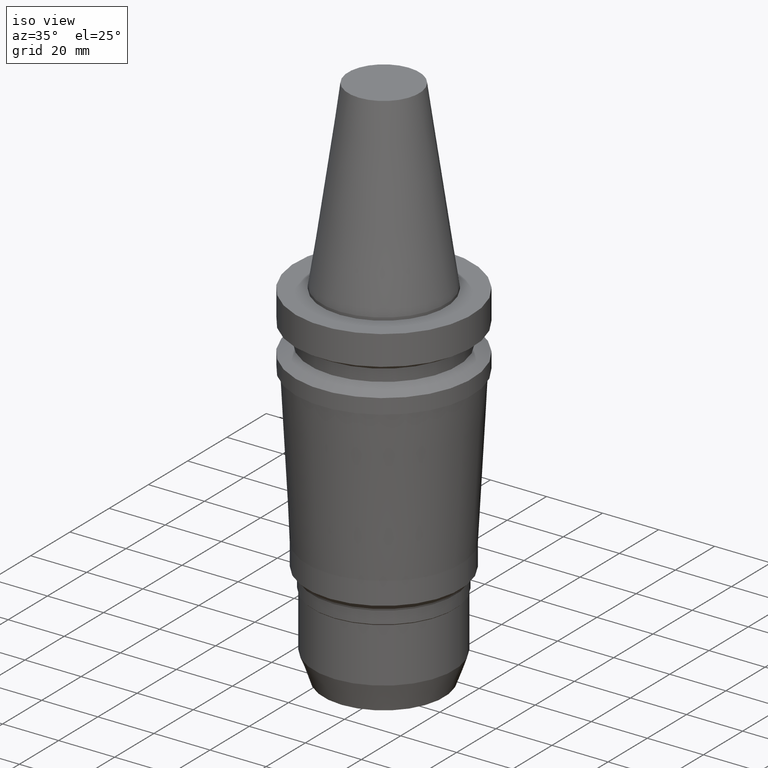
[diagram: clean part render]
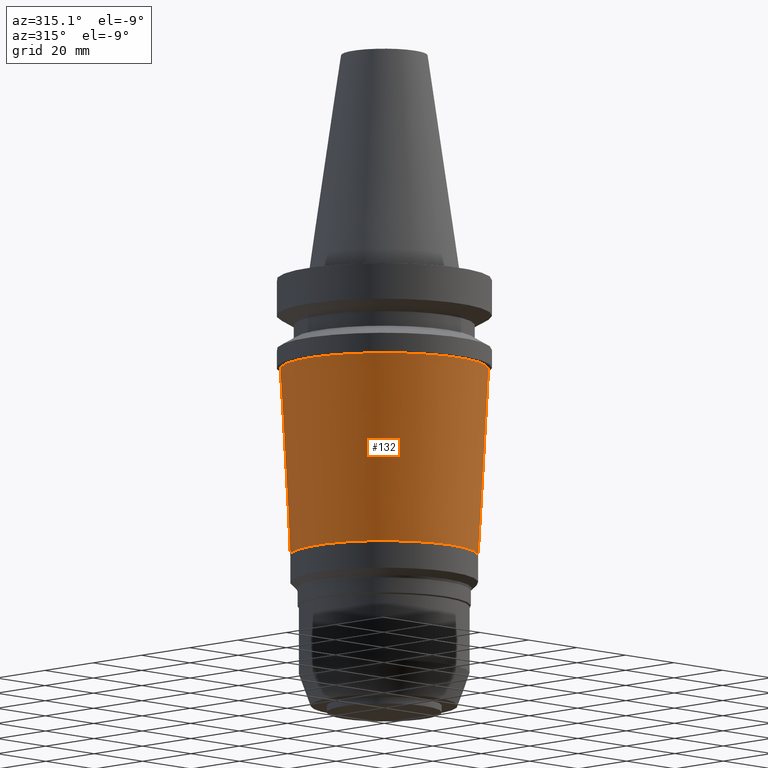
[diagram: tour spotlight — one face highlighted and labeled with its STEP entity id]
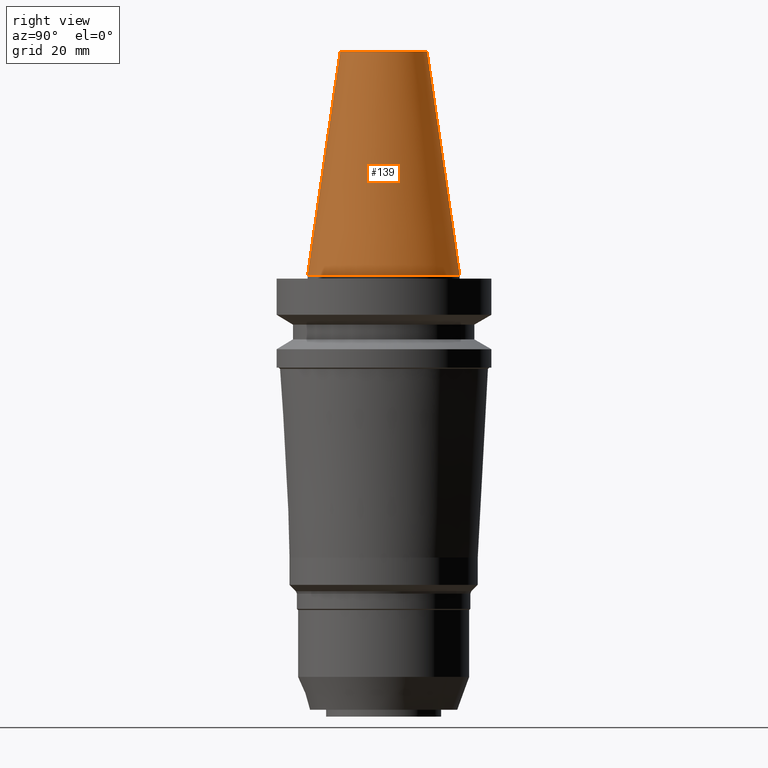
[diagram: tour spotlight — one face highlighted and labeled with its STEP entity id]
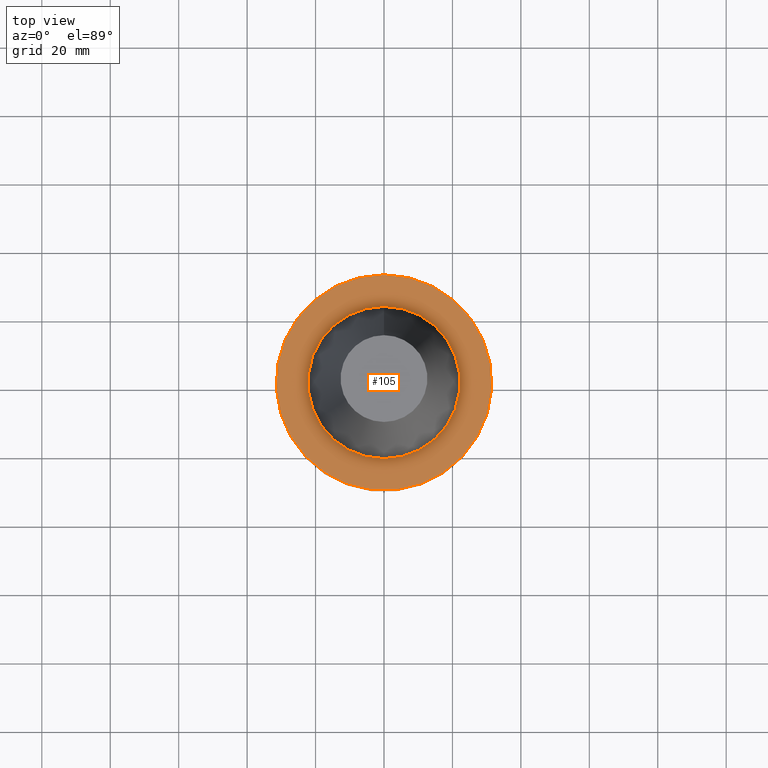
[diagram: tour spotlight — one face highlighted and labeled with its STEP entity id]
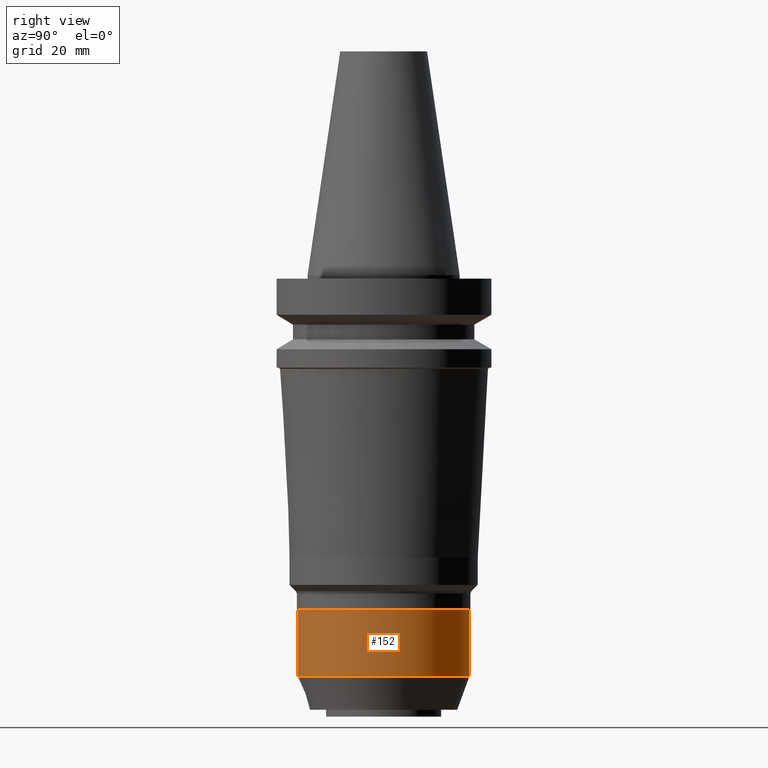
[diagram: tour spotlight — one face highlighted and labeled with its STEP entity id]
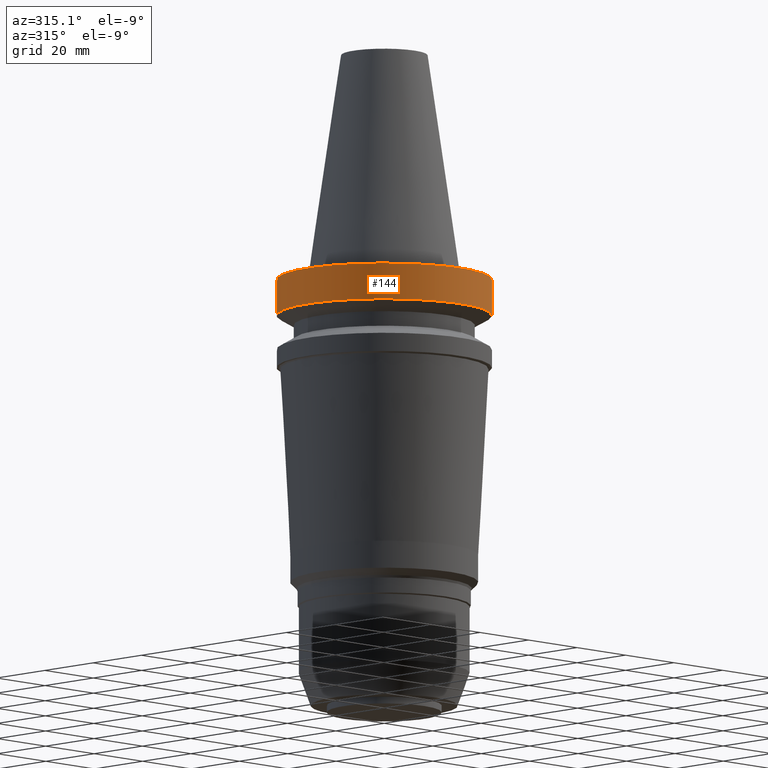
[diagram: tour spotlight — one face highlighted and labeled with its STEP entity id]
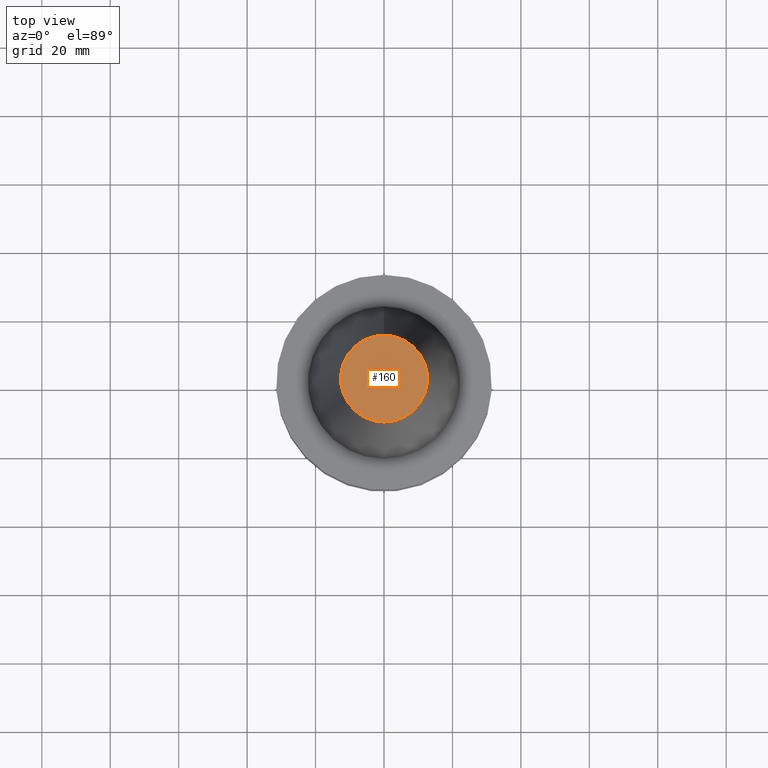
[diagram: tour spotlight — one face highlighted and labeled with its STEP entity id]
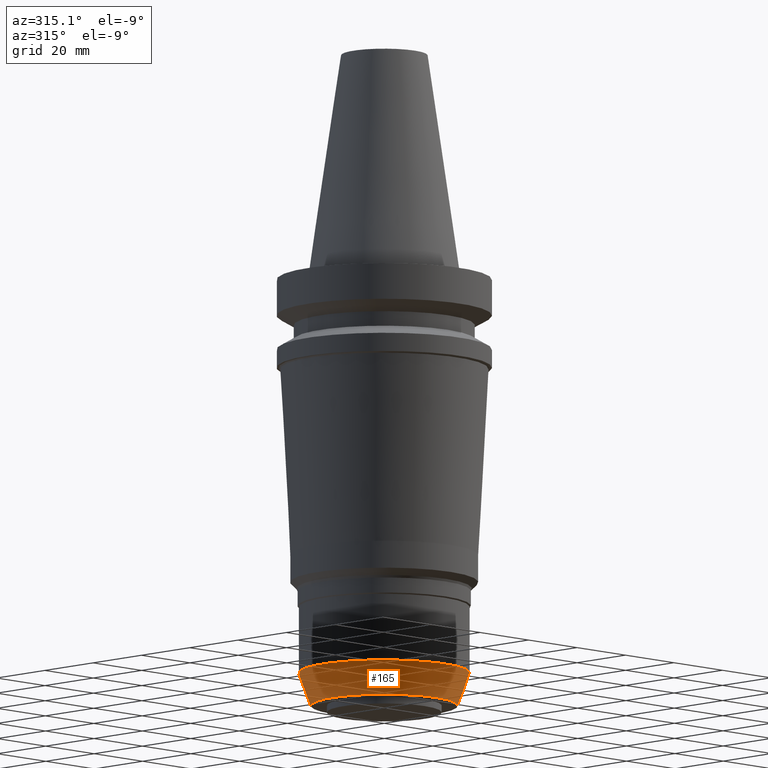
[diagram: tour spotlight — one face highlighted and labeled with its STEP entity id]
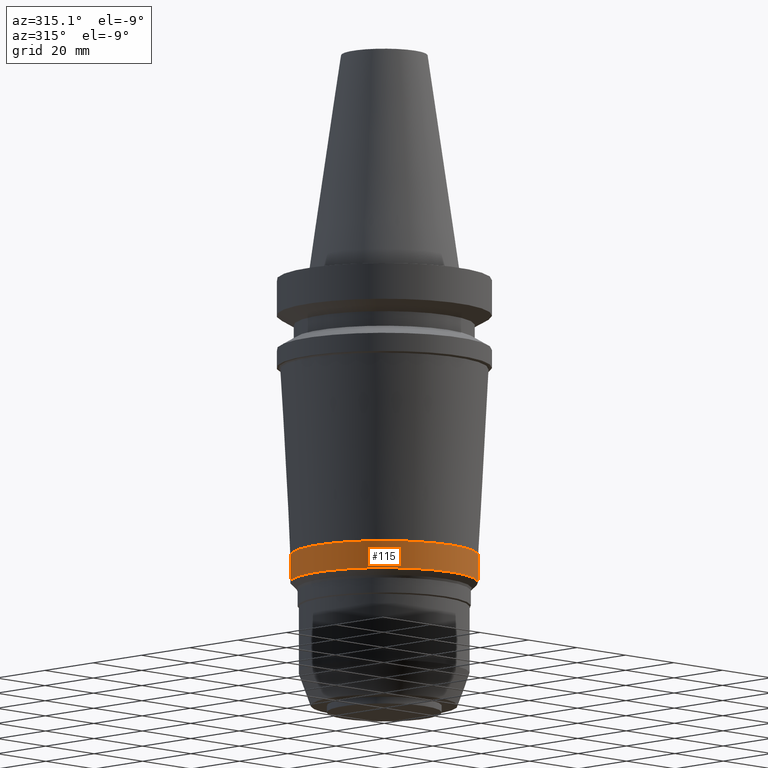
[diagram: tour spotlight — one face highlighted and labeled with its STEP entity id]
A machine part: a face-by-face anatomy tour. The part has 22 B-rep faces; the first image is the clean iso view, then the 8 largest visible faces are spotlighted one at a time (largest first), each with its STEP entity span.

Face 1 — auxiliary view, entity #132. In plain terms, the highlighted conical surface has half-angle 3.094 deg.
Definition (entity closure, byte-faithful):
#92=EDGE_CURVE('Unnamed[1]',#231,#231,#232,.T.);
#107=EDGE_CURVE('Unnamed[1]',#255,#255,#256,.T.);
#132=ADVANCED_FACE('Unnamed[1]',(#294,#295),#296,.T.);
#231=VERTEX_POINT('',#420);
#232=CIRCLE('',#421,30.479545410984);
#255=VERTEX_POINT('',#450);
#256=CIRCLE('',#451,27.5000000000001);
#294=FACE_BOUND('',#499,.T.);
#295=FACE_BOUND('',#500,.T.);
#296=CONICAL_SURFACE('',#501,28.989772705492,0.0540015003759622);
#420=CARTESIAN_POINT('',(1.67644410229264E-015,30.479545410984,-27.3784098967939));
#421=AXIS2_PLACEMENT_3D('',#631,#632,#633);
#450=CARTESIAN_POINT('',(5.05166804648287E-015,27.5000000000001,-82.5000000000006));
#451=AXIS2_PLACEMENT_3D('',#658,#659,#660);
#499=EDGE_LOOP('',(#701));
#500=EDGE_LOOP('',(#702));
#501=AXIS2_PLACEMENT_3D('',#703,#704,#705);
#631=CARTESIAN_POINT('',(1.67644410229264E-015,7.01990976869994E-014,-27.3784098967939));
#632=DIRECTION('',(6.12323399573677E-017,-7.43161200358749E-017,-1.0));
#633=DIRECTION('',(-2.76602804422784E-034,1.0,-7.43161200358749E-017));
#658=CARTESIAN_POINT('',(5.05166804648287E-015,6.61026749803221E-014,-82.5000000000006));
#659=DIRECTION('',(6.12323399573677E-017,-7.43161200359167E-017,-1.0));
#660=DIRECTION('',(-2.76602804412402E-034,1.0,-7.43161200359167E-017));
#701=ORIENTED_EDGE('',*,*,#107,.F.);
#702=ORIENTED_EDGE('',*,*,#92,.T.);
#703=CARTESIAN_POINT('',(3.36405607438776E-015,6.81508863336608E-014,-54.9392049483973));
#704=DIRECTION('',(-6.12323399573677E-017,7.43161200358947E-017,1.0));
#705=DIRECTION('',(-2.76602804405485E-034,1.0,-7.43161200358947E-017));

Face 2 — right view, entity #139. In plain terms, the highlighted conical surface has half-angle 8.297 deg.
Definition (entity closure, byte-faithful):
#90=EDGE_CURVE('Unnamed[1]',#228,#228,#229,.T.);
#117=EDGE_CURVE('Unnamed[1]',#271,#271,#272,.T.);
#139=ADVANCED_FACE('Unnamed[1]',(#305,#306),#307,.T.);
#228=VERTEX_POINT('',#416);
#229=CIRCLE('',#417,22.225);
#271=VERTEX_POINT('',#470);
#272=CIRCLE('',#471,12.6875000000001);
#305=FACE_BOUND('',#513,.T.);
#306=FACE_BOUND('',#514,.T.);
#307=CONICAL_SURFACE('',#515,17.45625,0.144812498238936);
#416=CARTESIAN_POINT('',(1.71319921032766E-029,22.2250000000001,-2.8153873565375E-013));
#417=AXIS2_PLACEMENT_3D('',#628,#629,#630);
#470=CARTESIAN_POINT('',(-4.00459503321185E-015,12.6875000000002,65.4000000000001));
#471=AXIS2_PLACEMENT_3D('',#676,#677,#678);
#513=EDGE_LOOP('',(#713));
#514=EDGE_LOOP('',(#714));
#515=AXIS2_PLACEMENT_3D('',#715,#716,#717);
#628=CARTESIAN_POINT('',(1.74032777401202E-029,7.22337548832805E-014,-2.8421709430404E-013));
#629=DIRECTION('',(6.12323399573677E-017,-7.43161200358123E-017,-1.0));
#630=DIRECTION('',(-2.76602804424832E-034,1.0,-7.43161200358123E-017));
#676=CARTESIAN_POINT('',(-4.00459503321185E-015,7.70940291336257E-014,65.4000000000001));
#677=DIRECTION('',(6.12323399573677E-017,-7.43161200357634E-017,-1.0));
#678=DIRECTION('',(-2.76602804425831E-034,1.0,-7.43161200357634E-017));
#713=ORIENTED_EDGE('',*,*,#90,.F.);
#714=ORIENTED_EDGE('',*,*,#117,.T.);
#715=CARTESIAN_POINT('',(-2.00229751660592E-015,7.46638920084531E-014,32.6999999999999));
#716=DIRECTION('',(6.12323399573677E-017,-7.43161200358871E-017,-1.0));
#717=DIRECTION('',(-2.7660280441492E-034,1.0,-7.43161200358871E-017));

Face 3 — top view, entity #105. In plain terms, the highlighted planar face has unit normal (-0, -0, 1).
Definition (entity closure, byte-faithful):
#105=ADVANCED_FACE('Unnamed[1]',(#251,#252),#253,.T.);
#121=EDGE_CURVE('Unnamed[1]',#277,#277,#278,.T.);
#129=EDGE_CURVE('Unnamed[1]',#290,#290,#291,.T.);
#251=FACE_OUTER_BOUND('',#445,.T.);
#252=FACE_BOUND('',#446,.T.);
#253=PLANE('',#447);
#277=VERTEX_POINT('',#478);
#278=CIRCLE('',#479,22.225);
#290=VERTEX_POINT('',#494);
#291=CIRCLE('',#495,31.4999999999996);
#445=EDGE_LOOP('',(#653));
#446=EDGE_LOOP('',(#654));
#447=AXIS2_PLACEMENT_3D('',#655,#656,#657);
#478=CARTESIAN_POINT('',(6.12323399573622E-017,22.2250000000001,-0.999999999999912));
#479=AXIS2_PLACEMENT_3D('',#682,#683,#684);
#494=CARTESIAN_POINT('',(6.12323399573568E-017,31.4999999999997,-0.999999999999825));
#495=AXIS2_PLACEMENT_3D('',#697,#698,#699);
#653=ORIENTED_EDGE('',*,*,#129,.F.);
#654=ORIENTED_EDGE('',*,*,#121,.T.);
#655=CARTESIAN_POINT('',(6.12323399573595E-017,26.8624999999999,-0.999999999999869));
#656=DIRECTION('',(-6.12323399573677E-017,-9.35138060429241E-015,1.0));
#657=DIRECTION('',(5.77434068963536E-031,-1.0,-9.35138060429241E-015));
#682=CARTESIAN_POINT('',(6.12323399573624E-017,7.21594387632447E-014,-0.999999999999915));
#683=DIRECTION('',(6.12323399573677E-017,-7.43161200358123E-017,-1.0));
#684=DIRECTION('',(-2.76602804424832E-034,1.0,-7.43161200358123E-017));
#697=CARTESIAN_POINT('',(6.12323399573572E-017,7.21594387632447E-014,-0.999999999999829));
#698=DIRECTION('',(6.12323399573677E-017,-7.43161200358357E-017,-1.0));
#699=DIRECTION('',(-2.76602804421517E-034,1.0,-7.43161200358357E-017));

Face 4 — right view, entity #152. In plain terms, the highlighted cylindrical surface (bore or boss wall) has radius 25 mm, axis along (0, -0, -1).
Definition (entity closure, byte-faithful):
#76=EDGE_CURVE('Unnamed[1]',#205,#205,#206,.T.);
#102=EDGE_CURVE('Unnamed[1]',#247,#247,#248,.T.);
#152=ADVANCED_FACE('Unnamed[1]',(#326,#327),#328,.T.);
#205=VERTEX_POINT('',#388);
#206=CIRCLE('',#389,25.0);
#247=VERTEX_POINT('',#440);
#248=CIRCLE('',#441,24.9999999999999);
#326=FACE_BOUND('',#539,.T.);
#327=FACE_BOUND('',#540,.T.);
#328=CYLINDRICAL_SURFACE('',#541,25.0);
#388=CARTESIAN_POINT('',(7.18768652477966E-015,25.0000000000001,-117.383829031914));
#389=AXIS2_PLACEMENT_3D('',#601,#602,#603);
#440=CARTESIAN_POINT('',(5.99156470173878E-015,25.0,-97.8496772442526));
#441=AXIS2_PLACEMENT_3D('',#649,#650,#651);
#539=EDGE_LOOP('',(#737));
#540=EDGE_LOOP('',(#738));
#541=AXIS2_PLACEMENT_3D('',#739,#740,#741);
#601=CARTESIAN_POINT('',(7.18768652477966E-015,6.35102441546761E-014,-117.383829031914));
#602=DIRECTION('',(6.12323399573677E-017,-7.43161200359169E-017,-1.0));
#603=DIRECTION('',(-2.76602804426752E-034,1.0,-7.43161200359169E-017));
#649=CARTESIAN_POINT('',(5.99156470173878E-015,6.49619465237266E-014,-97.8496772442526));
#650=DIRECTION('',(6.12323399573677E-017,-7.43161200359171E-017,-1.0));
#651=DIRECTION('',(-2.76602804412404E-034,1.0,-7.43161200359171E-017));
#737=ORIENTED_EDGE('',*,*,#76,.F.);
#738=ORIENTED_EDGE('',*,*,#102,.T.);
#739=CARTESIAN_POINT('',(6.58962561325922E-015,6.42360953392014E-014,-107.616753138083));
#740=DIRECTION('',(6.12323399573677E-017,-7.4316120035917E-017,-1.0));
#741=DIRECTION('',(-2.76602804426753E-034,1.0,-7.4316120035917E-017));

Face 5 — auxiliary view, entity #144. In plain terms, the highlighted cylindrical surface (bore or boss wall) has radius 31.5 mm, axis along (0, -0, -1).
Definition (entity closure, byte-faithful):
#129=EDGE_CURVE('Unnamed[1]',#290,#290,#291,.T.);
#144=ADVANCED_FACE('Unnamed[1]',(#313,#314),#315,.T.);
#177=EDGE_CURVE('Unnamed[1]',#366,#366,#367,.T.);
#290=VERTEX_POINT('',#494);
#291=CIRCLE('',#495,31.4999999999996);
#313=FACE_BOUND('',#523,.T.);
#314=FACE_BOUND('',#524,.T.);
#315=CYLINDRICAL_SURFACE('',#525,31.5);
#366=VERTEX_POINT('',#589);
#367=CIRCLE('',#590,31.5000000000003);
#494=CARTESIAN_POINT('',(6.12323399573568E-017,31.4999999999997,-0.999999999999825));
#495=AXIS2_PLACEMENT_3D('',#697,#698,#699);
#523=EDGE_LOOP('',(#722));
#524=EDGE_LOOP('',(#723));
#525=AXIS2_PLACEMENT_3D('',#724,#725,#726);
#589=CARTESIAN_POINT('',(7.08182973902924E-016,31.5000000000004,-11.5655056526664));
#590=AXIS2_PLACEMENT_3D('',#783,#784,#785);
#697=CARTESIAN_POINT('',(6.12323399573572E-017,7.21594387632447E-014,-0.999999999999829));
#698=DIRECTION('',(6.12323399573677E-017,-7.43161200358357E-017,-1.0));
#699=DIRECTION('',(-2.76602804421517E-034,1.0,-7.43161200358357E-017));
#722=ORIENTED_EDGE('',*,*,#177,.F.);
#723=ORIENTED_EDGE('',*,*,#129,.T.);
#724=CARTESIAN_POINT('',(3.84707656930141E-016,7.17668450700831E-014,-6.28275282633309));
#725=DIRECTION('',(6.12323399573676E-017,-7.43161200358349E-017,-1.0));
#726=DIRECTION('',(-2.76602804432902E-034,1.0,-7.43161200358349E-017));
#783=CARTESIAN_POINT('',(7.08182973902924E-016,7.13742513769216E-014,-11.5655056526664));
#784=DIRECTION('',(6.12323399573677E-017,-7.43161200358341E-017,-1.0));
#785=DIRECTION('',(-2.76602804421511E-034,1.0,-7.43161200358341E-017));

Face 6 — top view, entity #160. In plain terms, the highlighted planar face has unit normal (-0, 0, 1).
Definition (entity closure, byte-faithful):
#117=EDGE_CURVE('Unnamed[1]',#271,#271,#272,.T.);
#160=ADVANCED_FACE('Unnamed[1]',(#339),#340,.T.);
#271=VERTEX_POINT('',#470);
#272=CIRCLE('',#471,12.6875000000001);
#339=FACE_OUTER_BOUND('',#555,.T.);
#340=PLANE('',#556);
#470=CARTESIAN_POINT('',(-4.00459503321185E-015,12.6875000000002,65.4000000000001));
#471=AXIS2_PLACEMENT_3D('',#676,#677,#678);
#555=EDGE_LOOP('',(#752));
#556=AXIS2_PLACEMENT_3D('',#753,#754,#755);
#676=CARTESIAN_POINT('',(-4.00459503321185E-015,7.70940291336257E-014,65.4000000000001));
#677=DIRECTION('',(6.12323399573677E-017,-7.43161200357634E-017,-1.0));
#678=DIRECTION('',(-2.76602804425831E-034,1.0,-7.43161200357634E-017));
#752=ORIENTED_EDGE('',*,*,#117,.F.);
#753=CARTESIAN_POINT('',(-4.00459503321185E-015,6.34375000000014,65.4000000000001));
#754=DIRECTION('',(-6.12323399573677E-017,9.97602686800683E-016,1.0));
#755=DIRECTION('',(-5.62583941297938E-032,-1.0,9.97602686800683E-016));

Face 7 — auxiliary view, entity #165. In plain terms, the highlighted conical surface has half-angle 20 deg.
Definition (entity closure, byte-faithful):
#76=EDGE_CURVE('Unnamed[1]',#205,#205,#206,.T.);
#165=ADVANCED_FACE('Unnamed[1]',(#346,#347),#348,.T.);
#175=EDGE_CURVE('Unnamed[1]',#363,#363,#364,.T.);
#205=VERTEX_POINT('',#388);
#206=CIRCLE('',#389,25.0);
#346=FACE_BOUND('',#564,.T.);
#347=FACE_BOUND('',#565,.T.);
#348=CONICAL_SURFACE('',#566,23.2500000000006,0.349065850399007);
#363=VERTEX_POINT('',#585);
#364=CIRCLE('',#586,21.5000000000011);
#388=CARTESIAN_POINT('',(7.18768652477966E-015,25.0000000000001,-117.383829031914));
#389=AXIS2_PLACEMENT_3D('',#601,#602,#603);
#564=EDGE_LOOP('',(#760));
#565=EDGE_LOOP('',(#761));
#566=AXIS2_PLACEMENT_3D('',#762,#763,#764);
#585=CARTESIAN_POINT('',(7.77650717458554E-015,21.5000000000012,-126.999999999998));
#586=AXIS2_PLACEMENT_3D('',#780,#781,#782);
#601=CARTESIAN_POINT('',(7.18768652477966E-015,6.35102441546761E-014,-117.383829031914));
#602=DIRECTION('',(6.12323399573677E-017,-7.43161200359169E-017,-1.0));
#603=DIRECTION('',(-2.76602804426752E-034,1.0,-7.43161200359169E-017));
#760=ORIENTED_EDGE('',*,*,#175,.F.);
#761=ORIENTED_EDGE('',*,*,#76,.T.);
#762=CARTESIAN_POINT('',(7.4820968496826E-015,6.31529258967014E-014,-122.191914515956));
#763=DIRECTION('',(-6.12323399573677E-017,7.43161200358596E-017,1.0));
#764=DIRECTION('',(-2.76602804426283E-034,1.0,-7.43161200358595E-017));
#780=CARTESIAN_POINT('',(7.77650717458554E-015,6.27956076387266E-014,-126.999999999998));
#781=DIRECTION('',(6.12323399573677E-017,-7.43161200357929E-017,-1.0));
#782=DIRECTION('',(-2.76602804425737E-034,1.0,-7.43161200357929E-017));

Face 8 — auxiliary view, entity #115. In plain terms, the highlighted cylindrical surface (bore or boss wall) has radius 27.5 mm, axis along (0, -0, -1).
Definition (entity closure, byte-faithful):
#68=EDGE_CURVE('Unnamed[1]',#195,#195,#196,.T.);
#107=EDGE_CURVE('Unnamed[1]',#255,#255,#256,.T.);
#115=ADVANCED_FACE('Unnamed[1]',(#267,#268),#269,.T.);
#195=VERTEX_POINT('',#376);
#196=CIRCLE('',#377,27.5000000000002);
#255=VERTEX_POINT('',#450);
#256=CIRCLE('',#451,27.5000000000001);
#267=FACE_BOUND('',#465,.T.);
#268=FACE_BOUND('',#466,.T.);
#269=CYLINDRICAL_SURFACE('',#467,27.5000000000001);
#376=CARTESIAN_POINT('',(5.54150700305324E-015,27.5000000000002,-90.4996772442708));
#377=AXIS2_PLACEMENT_3D('',#592,#593,#594);
#450=CARTESIAN_POINT('',(5.05166804648287E-015,27.5000000000001,-82.5000000000006));
#451=AXIS2_PLACEMENT_3D('',#658,#659,#660);
#465=EDGE_LOOP('',(#671));
#466=EDGE_LOOP('',(#672));
#467=AXIS2_PLACEMENT_3D('',#673,#674,#675);
#592=CARTESIAN_POINT('',(5.54150700305324E-015,6.55081700059888E-014,-90.4996772442708));
#593=DIRECTION('',(6.12323399573677E-017,-7.43161200359164E-017,-1.0));
#594=DIRECTION('',(-2.76602804412401E-034,1.0,-7.43161200359164E-017));
#658=CARTESIAN_POINT('',(5.05166804648287E-015,6.61026749803221E-014,-82.5000000000006));
#659=DIRECTION('',(6.12323399573677E-017,-7.43161200359167E-017,-1.0));
#660=DIRECTION('',(-2.76602804412402E-034,1.0,-7.43161200359167E-017));
#671=ORIENTED_EDGE('',*,*,#68,.F.);
#672=ORIENTED_EDGE('',*,*,#107,.T.);
#673=CARTESIAN_POINT('',(5.29658752476806E-015,6.58054224931555E-014,-86.4998386221357));
#674=DIRECTION('',(6.12323399573677E-017,-7.43161200359166E-017,-1.0));
#675=DIRECTION('',(-2.76602804412402E-034,1.0,-7.43161200359166E-017));